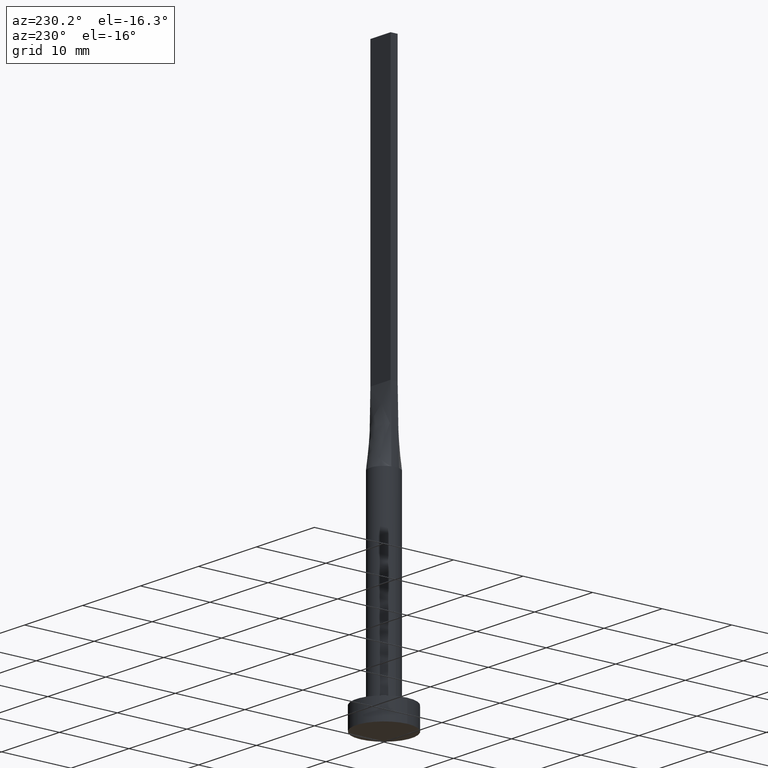
[diagram: clean part render]
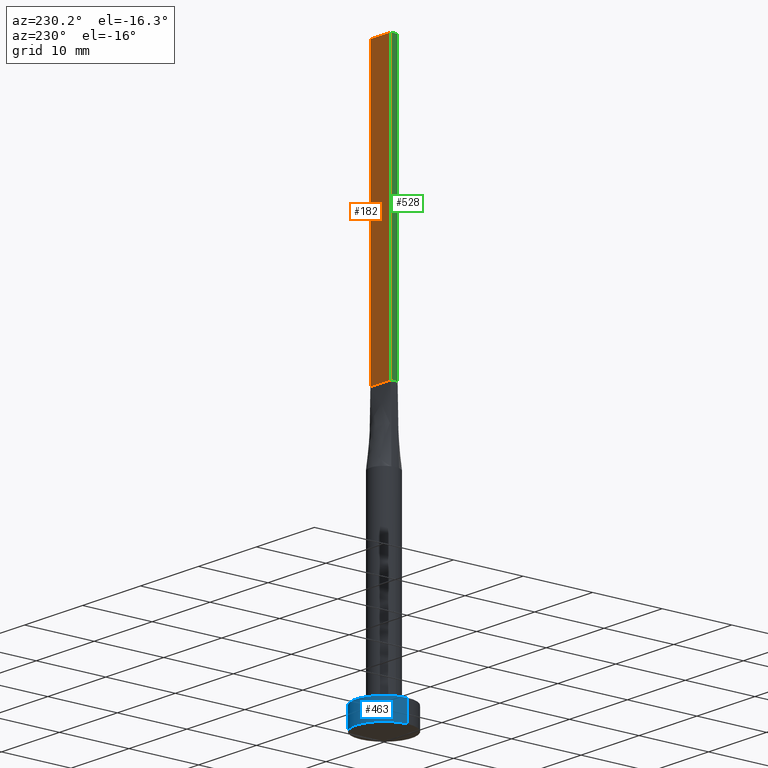
[diagram: same view with three faces highlighted in distinct colors, each labeled with its STEP entity id]
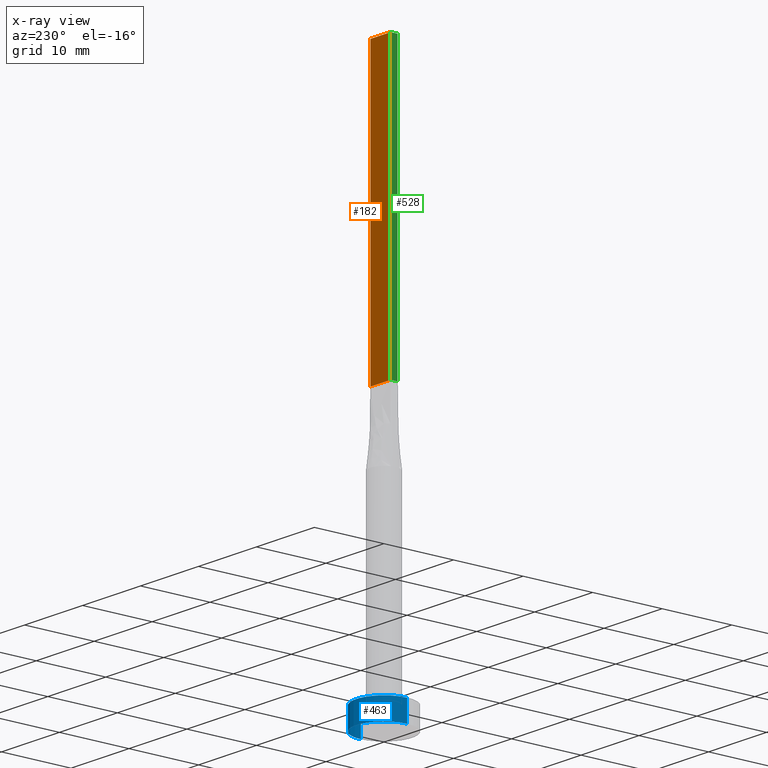
[diagram: x-ray of the same camera — body ghosted, the three highlighted faces saturated]
A machine part, auxiliary view with three faces highlighted in distinct colors.
The next image is the same camera in x-ray (body ghosted, the three faces saturated) — at least one of them is partly hidden behind the body in this view.
Their STEP definitions:

[orange] entity #182 — the highlighted planar face has unit normal (0, -1, 0).
#4 = CARTESIAN_POINT ( 'NONE',  ( 1.749999999999999778, 0.5000000000000002220, 80.00000000000000000 ) ) ;
#11 = DIRECTION ( 'NONE',  ( 0.000000000000000000, -1.000000000000000000, 0.000000000000000000 ) ) ;
#14 = PLANE ( 'NONE',  #362 ) ;
#34 = ORIENTED_EDGE ( 'NONE', *, *, #113, .T. ) ;
#45 = DIRECTION ( 'NONE',  ( -1.000000000000000000, 0.000000000000000000, 0.000000000000000000 ) ) ;
#57 = CARTESIAN_POINT ( 'NONE',  ( -1.749999999999999778, 0.5000000000000002220, 40.00000000000000000 ) ) ;
#58 = VERTEX_POINT ( 'NONE', #356 ) ;
#66 = VECTOR ( 'NONE', #45, 1000.000000000000000 ) ;
#87 = CARTESIAN_POINT ( 'NONE',  ( -1.749999999999999778, 0.5000000000000002220, 80.00000000000000000 ) ) ;
#89 = LINE ( 'NONE', #4, #280 ) ;
#99 = ORIENTED_EDGE ( 'NONE', *, *, #203, .F. ) ;
#104 = VERTEX_POINT ( 'NONE', #124 ) ;
#113 = EDGE_CURVE ( 'NONE', #104, #58, #89, .T. ) ;
#116 = VECTOR ( 'NONE', #254, 1000.000000000000000 ) ;
#124 = CARTESIAN_POINT ( 'NONE',  ( 1.749999999999999778, 0.5000000000000002220, 80.00000000000000000 ) ) ;
#141 = CARTESIAN_POINT ( 'NONE',  ( 1.749999999999999778, 0.5000000000000002220, 80.00000000000000000 ) ) ;
#148 = EDGE_LOOP ( 'NONE', ( #181, #340, #99, #34 ) ) ;
#181 = ORIENTED_EDGE ( 'NONE', *, *, #235, .T. ) ;
#182 = ADVANCED_FACE ( 'NONE', ( #368 ), #14, .F. ) ;
#190 = LINE ( 'NONE', #240, #66 ) ;
#203 = EDGE_CURVE ( 'NONE', #104, #464, #190, .T. ) ;
#231 = EDGE_CURVE ( 'NONE', #464, #555, #289, .T. ) ;
#235 = EDGE_CURVE ( 'NONE', #58, #555, #279, .T. ) ;
#240 = CARTESIAN_POINT ( 'NONE',  ( 1.749999999999999778, 0.5000000000000002220, 80.00000000000000000 ) ) ;
#250 = VECTOR ( 'NONE', #478, 1000.000000000000000 ) ;
#254 = DIRECTION ( 'NONE',  ( -0.000000000000000000, -0.000000000000000000, -1.000000000000000000 ) ) ;
#279 = LINE ( 'NONE', #57, #250 ) ;
#280 = VECTOR ( 'NONE', #310, 1000.000000000000000 ) ;
#289 = LINE ( 'NONE', #386, #116 ) ;
#310 = DIRECTION ( 'NONE',  ( -0.000000000000000000, -0.000000000000000000, -1.000000000000000000 ) ) ;
#340 = ORIENTED_EDGE ( 'NONE', *, *, #231, .F. ) ;
#356 = CARTESIAN_POINT ( 'NONE',  ( 1.749999999999999778, 0.5000000000000002220, 40.00000000000000000 ) ) ;
#362 = AXIS2_PLACEMENT_3D ( 'NONE', #141, #11, #449 ) ;
#368 = FACE_OUTER_BOUND ( 'NONE', #148, .T. ) ;
#386 = CARTESIAN_POINT ( 'NONE',  ( -1.749999999999999778, 0.5000000000000002220, 80.00000000000000000 ) ) ;
#449 = DIRECTION ( 'NONE',  ( 0.000000000000000000, -0.000000000000000000, -1.000000000000000000 ) ) ;
#464 = VERTEX_POINT ( 'NONE', #87 ) ;
#478 = DIRECTION ( 'NONE',  ( -1.000000000000000000, -0.000000000000000000, -0.000000000000000000 ) ) ;
#495 = CARTESIAN_POINT ( 'NONE',  ( -1.749999999999999778, 0.5000000000000002220, 40.00000000000000000 ) ) ;
#555 = VERTEX_POINT ( 'NONE', #495 ) ;

[blue] entity #463 — the highlighted cylindrical surface (edge-blend (fillet) strip) has radius 4 mm, axis along (-0, -0, -1).
#12 = CARTESIAN_POINT ( 'NONE',  ( 0.000000000000000000, 0.000000000000000000, 3.000000000000000000 ) ) ;
#20 = CARTESIAN_POINT ( 'NONE',  ( 4.000000000000000000, 4.898587196589412829E-16, 0.000000000000000000 ) ) ;
#21 = EDGE_LOOP ( 'NONE', ( #294, #379, #245, #402 ) ) ;
#29 = CARTESIAN_POINT ( 'NONE',  ( -4.000000000000000000, 0.000000000000000000, 3.000000000000000000 ) ) ;
#49 = DIRECTION ( 'NONE',  ( -0.000000000000000000, -0.000000000000000000, -1.000000000000000000 ) ) ;
#70 = DIRECTION ( 'NONE',  ( 0.000000000000000000, 0.000000000000000000, 1.000000000000000000 ) ) ;
#83 = DIRECTION ( 'NONE',  ( 1.000000000000000000, 0.000000000000000000, 0.000000000000000000 ) ) ;
#86 = AXIS2_PLACEMENT_3D ( 'NONE', #12, #49, #377 ) ;
#94 = EDGE_CURVE ( 'NONE', #387, #101, #317, .T. ) ;
#101 = VERTEX_POINT ( 'NONE', #29 ) ;
#122 = CARTESIAN_POINT ( 'NONE',  ( -4.000000000000000000, 0.000000000000000000, 0.000000000000000000 ) ) ;
#132 = EDGE_CURVE ( 'NONE', #101, #354, #502, .T. ) ;
#136 = CYLINDRICAL_SURFACE ( 'NONE', #86, 4.000000000000000000 ) ;
#171 = CARTESIAN_POINT ( 'NONE',  ( 4.000000000000000000, 4.898587196589412829E-16, 3.000000000000000000 ) ) ;
#193 = AXIS2_PLACEMENT_3D ( 'NONE', #399, #70, #357 ) ;
#245 = ORIENTED_EDGE ( 'NONE', *, *, #388, .T. ) ;
#252 = VERTEX_POINT ( 'NONE', #20 ) ;
#294 = ORIENTED_EDGE ( 'NONE', *, *, #94, .F. ) ;
#296 = CARTESIAN_POINT ( 'NONE',  ( 4.000000000000000000, 4.898587196589412829E-16, 3.000000000000000000 ) ) ;
#315 = CARTESIAN_POINT ( 'NONE',  ( -4.000000000000000000, 0.000000000000000000, 3.000000000000000000 ) ) ;
#317 = CIRCLE ( 'NONE', #408, 4.000000000000000000 ) ;
#321 = DIRECTION ( 'NONE',  ( -0.000000000000000000, -0.000000000000000000, -1.000000000000000000 ) ) ;
#348 = EDGE_CURVE ( 'NONE', #387, #252, #390, .T. ) ;
#354 = VERTEX_POINT ( 'NONE', #122 ) ;
#357 = DIRECTION ( 'NONE',  ( 1.000000000000000000, 0.000000000000000000, 0.000000000000000000 ) ) ;
#373 = CIRCLE ( 'NONE', #193, 4.000000000000000000 ) ;
#377 = DIRECTION ( 'NONE',  ( -1.000000000000000000, 0.000000000000000000, 0.000000000000000000 ) ) ;
#379 = ORIENTED_EDGE ( 'NONE', *, *, #348, .T. ) ;
#387 = VERTEX_POINT ( 'NONE', #171 ) ;
#388 = EDGE_CURVE ( 'NONE', #252, #354, #373, .T. ) ;
#390 = LINE ( 'NONE', #296, #513 ) ;
#399 = CARTESIAN_POINT ( 'NONE',  ( 0.000000000000000000, 0.000000000000000000, 0.000000000000000000 ) ) ;
#402 = ORIENTED_EDGE ( 'NONE', *, *, #132, .F. ) ;
#408 = AXIS2_PLACEMENT_3D ( 'NONE', #491, #436, #83 ) ;
#436 = DIRECTION ( 'NONE',  ( 0.000000000000000000, 0.000000000000000000, 1.000000000000000000 ) ) ;
#463 = ADVANCED_FACE ( 'NONE', ( #546 ), #136, .T. ) ;
#490 = DIRECTION ( 'NONE',  ( -0.000000000000000000, -0.000000000000000000, -1.000000000000000000 ) ) ;
#491 = CARTESIAN_POINT ( 'NONE',  ( 0.000000000000000000, 0.000000000000000000, 3.000000000000000000 ) ) ;
#502 = LINE ( 'NONE', #315, #568 ) ;
#513 = VECTOR ( 'NONE', #490, 1000.000000000000000 ) ;
#546 = FACE_OUTER_BOUND ( 'NONE', #21, .T. ) ;
#568 = VECTOR ( 'NONE', #321, 1000.000000000000000 ) ;

[green] entity #528 — the highlighted planar face has unit normal (1, -0, 0).
#1 = LINE ( 'NONE', #316, #153 ) ;
#26 = EDGE_LOOP ( 'NONE', ( #467, #383, #65, #420 ) ) ;
#33 = DIRECTION ( 'NONE',  ( -0.000000000000000000, -0.000000000000000000, -1.000000000000000000 ) ) ;
#51 = CARTESIAN_POINT ( 'NONE',  ( -1.750000000000000000, -0.4999999999999995559, 40.00000000000000000 ) ) ;
#65 = ORIENTED_EDGE ( 'NONE', *, *, #174, .F. ) ;
#87 = CARTESIAN_POINT ( 'NONE',  ( -1.749999999999999778, 0.5000000000000002220, 80.00000000000000000 ) ) ;
#90 = PLANE ( 'NONE',  #345 ) ;
#105 = DIRECTION ( 'NONE',  ( 2.168404344971009361E-16, 1.000000000000000000, 0.000000000000000000 ) ) ;
#116 = VECTOR ( 'NONE', #254, 1000.000000000000000 ) ;
#135 = VECTOR ( 'NONE', #549, 1000.000000000000000 ) ;
#150 = CARTESIAN_POINT ( 'NONE',  ( -1.749999999999999778, 0.5000000000000002220, 80.00000000000000000 ) ) ;
#153 = VECTOR ( 'NONE', #458, 1000.000000000000000 ) ;
#174 = EDGE_CURVE ( 'NONE', #464, #572, #410, .T. ) ;
#188 = CARTESIAN_POINT ( 'NONE',  ( -1.749999999999999778, 0.5000000000000002220, 80.00000000000000000 ) ) ;
#231 = EDGE_CURVE ( 'NONE', #464, #555, #289, .T. ) ;
#254 = DIRECTION ( 'NONE',  ( -0.000000000000000000, -0.000000000000000000, -1.000000000000000000 ) ) ;
#269 = FACE_OUTER_BOUND ( 'NONE', #26, .T. ) ;
#289 = LINE ( 'NONE', #386, #116 ) ;
#299 = CARTESIAN_POINT ( 'NONE',  ( -1.750000000000000000, -0.4999999999999995559, 80.00000000000000000 ) ) ;
#316 = CARTESIAN_POINT ( 'NONE',  ( -1.749999999999999778, 0.5000000000000002220, 40.00000000000000000 ) ) ;
#325 = EDGE_CURVE ( 'NONE', #572, #493, #571, .T. ) ;
#328 = DIRECTION ( 'NONE',  ( 1.000000000000000000, -2.168404344971009361E-16, 0.000000000000000000 ) ) ;
#345 = AXIS2_PLACEMENT_3D ( 'NONE', #150, #328, #105 ) ;
#365 = VECTOR ( 'NONE', #33, 1000.000000000000000 ) ;
#383 = ORIENTED_EDGE ( 'NONE', *, *, #325, .F. ) ;
#386 = CARTESIAN_POINT ( 'NONE',  ( -1.749999999999999778, 0.5000000000000002220, 80.00000000000000000 ) ) ;
#410 = LINE ( 'NONE', #188, #135 ) ;
#420 = ORIENTED_EDGE ( 'NONE', *, *, #231, .T. ) ;
#458 = DIRECTION ( 'NONE',  ( -2.168404344971009361E-16, -1.000000000000000000, 0.000000000000000000 ) ) ;
#464 = VERTEX_POINT ( 'NONE', #87 ) ;
#467 = ORIENTED_EDGE ( 'NONE', *, *, #551, .T. ) ;
#493 = VERTEX_POINT ( 'NONE', #51 ) ;
#495 = CARTESIAN_POINT ( 'NONE',  ( -1.749999999999999778, 0.5000000000000002220, 40.00000000000000000 ) ) ;
#528 = ADVANCED_FACE ( 'NONE', ( #269 ), #90, .F. ) ;
#549 = DIRECTION ( 'NONE',  ( -2.168404344971009361E-16, -1.000000000000000000, 0.000000000000000000 ) ) ;
#551 = EDGE_CURVE ( 'NONE', #555, #493, #1, .T. ) ;
#555 = VERTEX_POINT ( 'NONE', #495 ) ;
#560 = CARTESIAN_POINT ( 'NONE',  ( -1.750000000000000000, -0.4999999999999995559, 80.00000000000000000 ) ) ;
#571 = LINE ( 'NONE', #299, #365 ) ;
#572 = VERTEX_POINT ( 'NONE', #560 ) ;